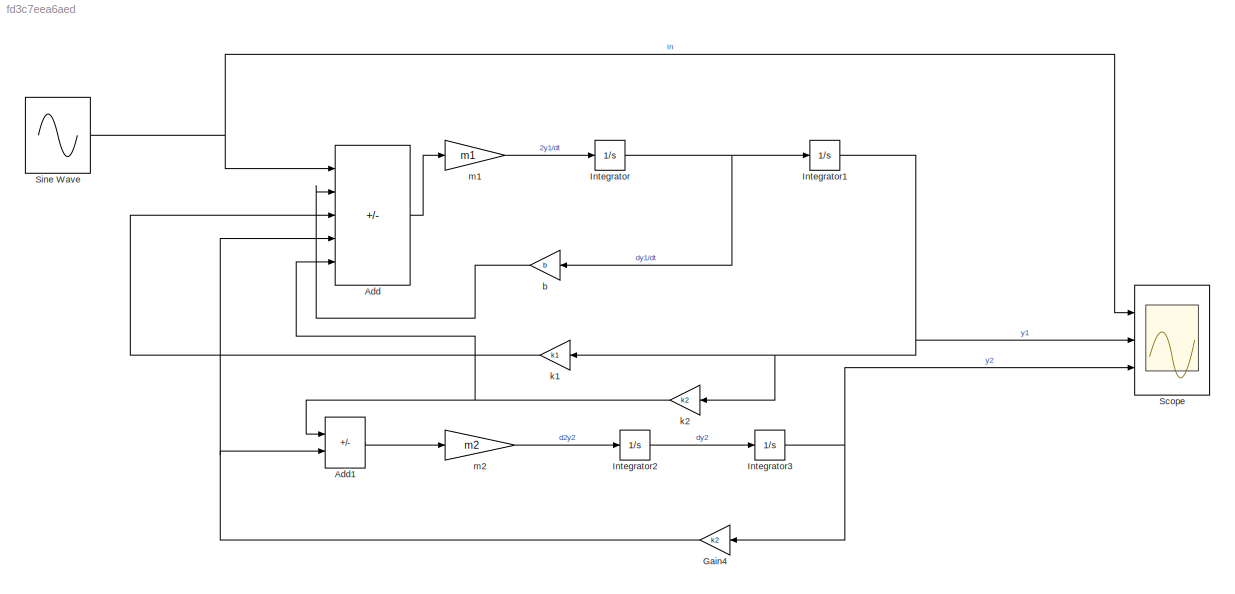
MODEL slx_fd3c7eea6aed
KIND model
CONFIG AbsTol = auto
CONFIG EnableMultiTasking = off
CONFIG FixedStep = auto
CONFIG MaxStep = auto
CONFIG MinStep = auto
CONFIG PostLoadFcn = m1=1/100\nb=50\nk1=50\nm2=1/2\nk2=1
CONFIG RelTol = 1e-3
CONFIG SampleTimeConstraint = Unconstrained
CONFIG Solver = VariableStepAuto
CONFIG SolverName = VariableStepAuto
CONFIG StartTime = 0.0
CONFIG StopTime = 50
BLOCK [Sum] Add
  IconShape = rectangular
  Inputs = +--+-
  Ports = [5, 1]
BLOCK [Sum] Add1
  IconShape = rectangular
  Inputs = +-
  Ports = [2, 1]
BLOCK [Gain] Gain4
  Gain = k2
  NameLocation = top
BLOCK [Integrator] Integrator
  Ports = [1, 1]
BLOCK [Integrator] Integrator1
  Ports = [1, 1]
BLOCK [Integrator] Integrator2
  Ports = [1, 1]
BLOCK [Integrator] Integrator3
  Ports = [1, 1]
BLOCK [Scope] Scope
  Floating = off
  NumInputPorts = 3
  Ports = [3]
  ScopeSpecificationString = Simulink.scopes.TimeScopeBlockCfg('CurrentConfiguration', extmgr.ConfigurationSet(extmgr.Configuration('Core','General UI',true),extmgr.Configuration('Core','Source UI',true),extmgr.Configuration('Sources','WiredSimulink',true),extmgr.Configuration('Visuals','Time Domain',true,'SerializedDisplays',{struct('MinYLimReal','-2.4984','MaxYLimReal','2.49953','YLabelReal','','MinYLimMag','0.00000','MaxYL...<+2766ch>
BLOCK [Sin] Sine Wave
  Amplitude = 2
  Frequency = 10
  Ports = [0, 1]
  SampleTime = 2*10^-4
BLOCK [Gain] b
  Gain = b
  NameLocation = top
BLOCK [Gain] k1
  Gain = k1
  NameLocation = top
BLOCK [Gain] k2
  Gain = k2
  NameLocation = top
BLOCK [Gain] m1
  Gain = m1
BLOCK [Gain] m2
  Gain = m2
LINE Add1:1 -> m2:1
LINE Add:1 -> m1:1
NET Gain4:1 -> Add1:2, Add:4
NET Integrator1:1 -> Scope:2, k1:1, k2:1
LINE Integrator2:1 -> Integrator3:1
NET Integrator3:1 -> Gain4:1, Scope:3
NET Integrator:1 -> Integrator1:1, b:1
NET Sine Wave:1 -> Add:1, Scope:1
LINE b:1 -> Add:2
LINE k1:1 -> Add:3
NET k2:1 -> Add1:1, Add:5
LINE m1:1 -> Integrator:1
LINE m2:1 -> Integrator2:1
note: NET lines group one-source signal fan-out (src -> all destinations, sorted); 1:1 wires keep LINE
